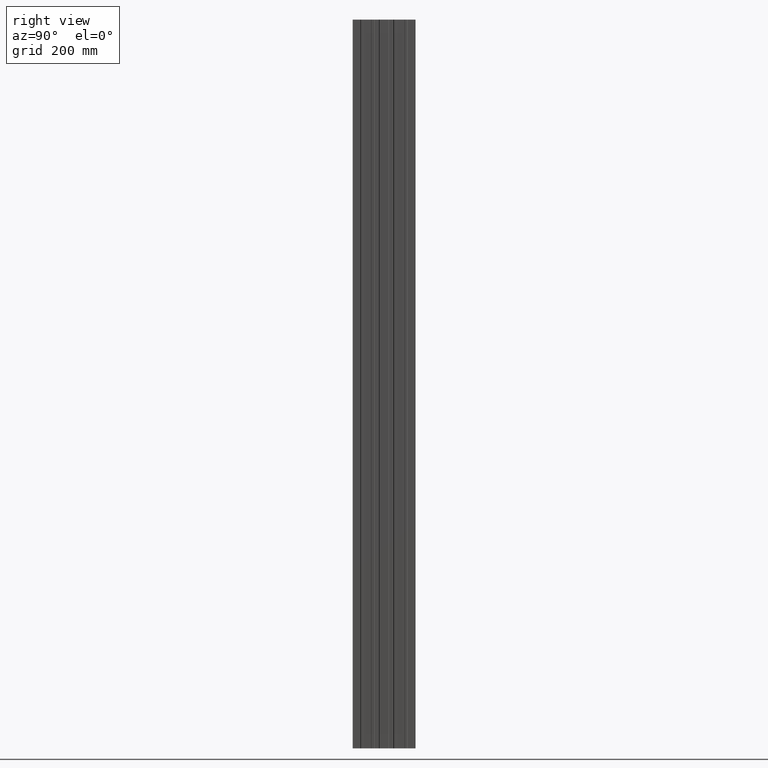
[diagram: clean part render]
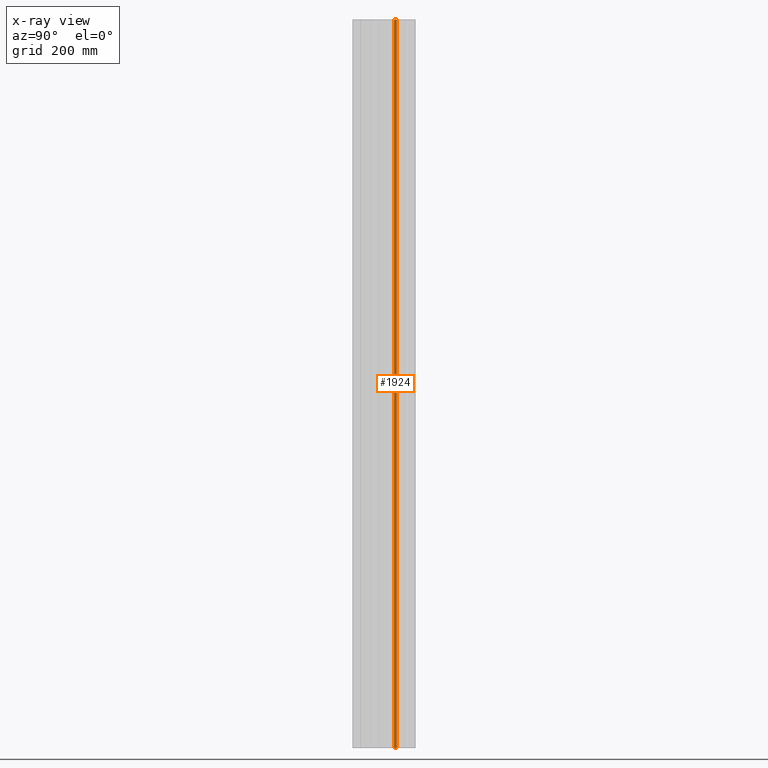
[diagram: x-ray — body ghosted, one internal face saturated and labeled with its STEP entity id]
A machine part, right view, then the same camera in x-ray: the body is ghosted and one INTERNAL B-rep face — a face not visible from any outside direction — is saturated and labeled: STEP entity #1924.
In plain terms, the highlighted planar face has unit normal (-1, 0, 0).
Its self-contained STEP definition (entity closure, byte-faithful):
#32 = ORIENTED_EDGE ( 'NONE', *, *, #2064, .T. ) ;
#92 = ORIENTED_EDGE ( 'NONE', *, *, #1178, .T. ) ;
#132 = VECTOR ( 'NONE', #1673, 1000.000000000000000 ) ;
#360 = VERTEX_POINT ( 'NONE', #2470 ) ;
#437 = FACE_OUTER_BOUND ( 'NONE', #1282, .T. ) ;
#531 = VECTOR ( 'NONE', #821, 1000.000000000000000 ) ;
#632 = VERTEX_POINT ( 'NONE', #1069 ) ;
#643 = CARTESIAN_POINT ( 'NONE',  ( 4.000000000000000000, 132.2886751345948000, 1162.000000000000000 ) ) ;
#655 = DIRECTION ( 'NONE',  ( -1.170319414868851600E-016, -1.000000000000000000, 0.0000000000000000000 ) ) ;
#690 = CARTESIAN_POINT ( 'NONE',  ( 4.000000000000000000, 132.2886751345948000, -1162.000000000000000 ) ) ;
#726 = LINE ( 'NONE', #1455, #132 ) ;
#821 = DIRECTION ( 'NONE',  ( 1.170319414868851600E-016, 1.000000000000000000, 0.0000000000000000000 ) ) ;
#824 = DIRECTION ( 'NONE',  ( -1.000000000000000000, 1.170319414868851600E-016, 0.0000000000000000000 ) ) ;
#894 = VECTOR ( 'NONE', #1061, 1000.000000000000000 ) ;
#977 = LINE ( 'NONE', #1281, #1949 ) ;
#1061 = DIRECTION ( 'NONE',  ( 1.170319414868851600E-016, 1.000000000000000000, 0.0000000000000000000 ) ) ;
#1065 = LINE ( 'NONE', #643, #531 ) ;
#1069 = CARTESIAN_POINT ( 'NONE',  ( 4.000000000000000900, 139.7000000000000500, -1162.000000000000000 ) ) ;
#1178 = EDGE_CURVE ( 'NONE', #360, #632, #1406, .T. ) ;
#1238 = ORIENTED_EDGE ( 'NONE', *, *, #2017, .F. ) ;
#1281 = CARTESIAN_POINT ( 'NONE',  ( 3.999999999999999100, 132.2886751345948000, 1162.000000000000000 ) ) ;
#1282 = EDGE_LOOP ( 'NONE', ( #92, #1238, #1431, #32 ) ) ;
#1398 = CARTESIAN_POINT ( 'NONE',  ( 4.000000000000000900, 139.7000000000000500, 1162.000000000000000 ) ) ;
#1406 = LINE ( 'NONE', #690, #894 ) ;
#1431 = ORIENTED_EDGE ( 'NONE', *, *, #2355, .F. ) ;
#1455 = CARTESIAN_POINT ( 'NONE',  ( 4.000000000000000900, 139.7000000000000500, 1162.000000000000000 ) ) ;
#1494 = DIRECTION ( 'NONE',  ( -0.0000000000000000000, -0.0000000000000000000, -1.000000000000000000 ) ) ;
#1614 = AXIS2_PLACEMENT_3D ( 'NONE', #1619, #824, #655 ) ;
#1619 = CARTESIAN_POINT ( 'NONE',  ( 4.000000000000000000, 132.2886751345948000, 1162.000000000000000 ) ) ;
#1673 = DIRECTION ( 'NONE',  ( -0.0000000000000000000, -0.0000000000000000000, -1.000000000000000000 ) ) ;
#1756 = CARTESIAN_POINT ( 'NONE',  ( 3.999999999999999100, 132.2886751345948000, 1162.000000000000000 ) ) ;
#1800 = VERTEX_POINT ( 'NONE', #1398 ) ;
#1842 = PLANE ( 'NONE',  #1614 ) ;
#1924 = ADVANCED_FACE ( 'NONE', ( #437 ), #1842, .F. ) ;
#1949 = VECTOR ( 'NONE', #1494, 1000.000000000000000 ) ;
#2017 = EDGE_CURVE ( 'NONE', #1800, #632, #726, .T. ) ;
#2064 = EDGE_CURVE ( 'NONE', #2100, #360, #977, .T. ) ;
#2100 = VERTEX_POINT ( 'NONE', #1756 ) ;
#2355 = EDGE_CURVE ( 'NONE', #2100, #1800, #1065, .T. ) ;
#2470 = CARTESIAN_POINT ( 'NONE',  ( 3.999999999999999100, 132.2886751345948000, -1162.000000000000000 ) ) ;